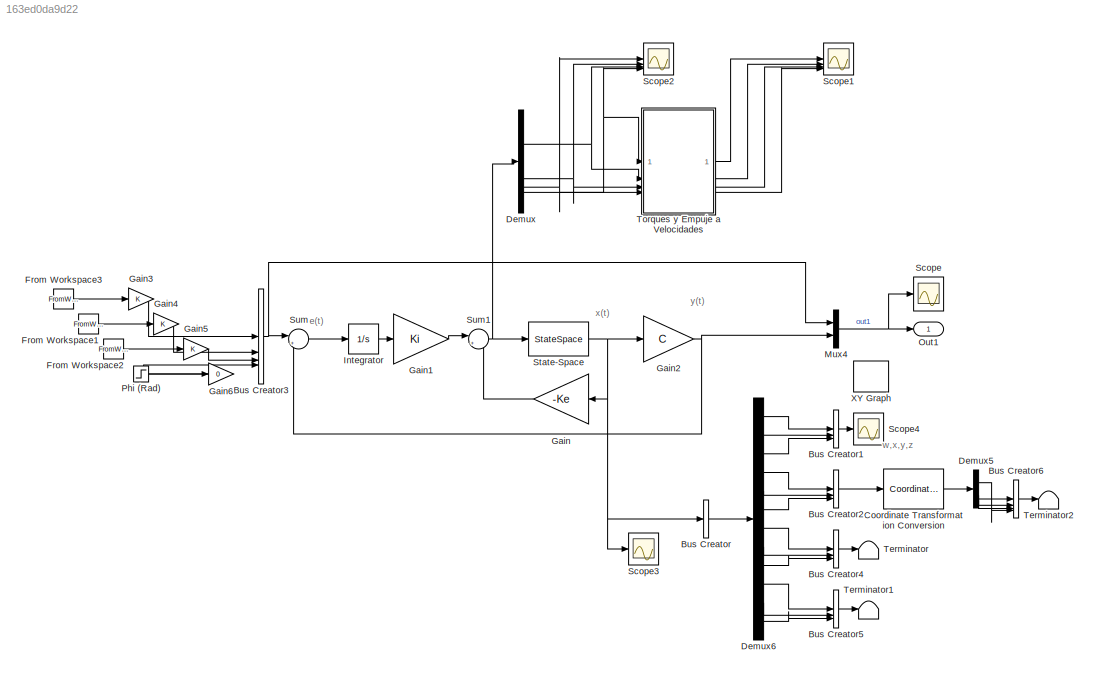
MODEL slx_163ed0da9d22
KIND model
CONFIG AbsTol = auto
CONFIG EnableMultiTasking = off
CONFIG FixedStep = T
CONFIG MaxStep = auto
CONFIG MinStep = auto
CONFIG RelTol = 1e-3
CONFIG SampleTimeConstraint = Unconstrained
CONFIG SolverName = FixedStepAuto
CONFIG StartTime = 0.0
CONFIG StopTime = t_final
BLOCK [BusCreator] Bus Creator
  DisplayOption = bar
  InheritFromInputs = on
  Inputs = 1
BLOCK [BusCreator] Bus Creator1
  DisplayOption = bar
  InheritFromInputs = on
  Inputs = 3
BLOCK [BusCreator] Bus Creator2
  DisplayOption = bar
  InheritFromInputs = on
  Inputs = 3
BLOCK [BusCreator] Bus Creator3
  DisplayOption = bar
  InheritFromInputs = on
  Inputs = 4
BLOCK [BusCreator] Bus Creator4
  DisplayOption = bar
  InheritFromInputs = on
  Inputs = 3
BLOCK [BusCreator] Bus Creator5
  DisplayOption = bar
  InheritFromInputs = on
  Inputs = 3
BLOCK [BusCreator] Bus Creator6
  DisplayOption = bar
  InheritFromInputs = on
  Inputs = 4
BLOCK [Reference] Coordinate Transformation Conversion  REF=robotcorelib/Coordinate Transformation Conversion
  SourceBlock = robotcorelib/Coordinate Transformation Conversion
  SourceType = robotics.slcore.internal.block.CoordinateTransformationConversion
BLOCK [Demux] Demux
BLOCK [Demux] Demux5
BLOCK [Demux] Demux6
  Outputs = 12
BLOCK [FromWorkspace] From Workspace1
  OutDataTypeStr = double
  SampleTime = -1
  VariableName = y
BLOCK [FromWorkspace] From Workspace2
  OutDataTypeStr = double
  SampleTime = -1
  VariableName = z
BLOCK [FromWorkspace] From Workspace3
  OutDataTypeStr = double
  SampleTime = -1
  VariableName = x
BLOCK [Gain] Gain
  Gain = -Ke
  Multiplication = Matrix(K*u) (u vector)
BLOCK [Gain] Gain1
  Gain = Ki
  Multiplication = Matrix(K*u) (u vector)
BLOCK [Gain] Gain2
  Gain = C
  Multiplication = Matrix(K*u) (u vector)
BLOCK [Gain] Gain3
BLOCK [Gain] Gain4
BLOCK [Gain] Gain5
BLOCK [Gain] Gain6
  Gain = 0
BLOCK [Integrator] Integrator
BLOCK [Mux] Mux4
  DisplayOption = bar
  Inputs = 2
BLOCK [Outport] Out1
BLOCK [Step] Phi (Rad)
  SampleTime = T
  Time = 3
BLOCK [Scope] Scope
  Floating = off
  NumInputPorts = 1
  ScopeSpecificationString = Simulink.scopes.TimeScopeBlockCfg('CurrentConfiguration', extmgr.ConfigurationSet(extmgr.Configuration('Core','General UI',true,'FigureColor',[1 1 1]),extmgr.Configuration('Core','Source UI',true),extmgr.Configuration('Sources','WiredSimulink',true),extmgr.Configuration('Visuals','Time Domain',true,'SerializedDisplays',{struct('MinYLimReal','-3.75','MaxYLimReal','3.75','YLabelReal','','MinYLimMag'...<+2750ch>
BLOCK [Scope] Scope1
  Floating = off
  NumInputPorts = 4
  ScopeSpecificationString = Simulink.scopes.TimeScopeBlockCfg('CurrentConfiguration', extmgr.ConfigurationSet(extmgr.Configuration('Core','General UI',true),extmgr.Configuration('Core','Source UI',true),extmgr.Configuration('Sources','WiredSimulink',true,'DataLoggingVariableName','ScopeData1'),extmgr.Configuration('Visuals','Time Domain',true,'SerializedDisplays',{struct('MinYLimReal','15.06231','MaxYLimReal','114.43919','YL...<+1909ch>
BLOCK [Scope] Scope2
  Floating = off
  NumInputPorts = 4
  ScopeSpecificationString = Simulink.scopes.TimeScopeBlockCfg('CurrentConfiguration', extmgr.ConfigurationSet(extmgr.Configuration('Core','General UI',true),extmgr.Configuration('Core','Source UI',true),extmgr.Configuration('Sources','WiredSimulink',true,'DataLoggingVariableName','ScopeData2'),extmgr.Configuration('Visuals','Time Domain',true,'SerializedDisplays',{struct('MinYLimReal','-20.70474','MaxYLimReal','9.36899','YLa...<+1542ch>
BLOCK [Scope] Scope3
  Floating = off
  NumInputPorts = 1
  ScopeSpecificationString = Simulink.scopes.TimeScopeBlockCfg('CurrentConfiguration', extmgr.ConfigurationSet(extmgr.Configuration('Core','General UI',true),extmgr.Configuration('Core','Source UI',true),extmgr.Configuration('Sources','WiredSimulink',true,'DataLoggingVariableName','ScopeData1'),extmgr.Configuration('Visuals','Time Domain',true,'SerializedDisplays',{struct('MinYLimReal','-0.53341','MaxYLimReal','4.80071','YLab...<+1876ch>
BLOCK [Scope] Scope4
  Floating = off
  NumInputPorts = 1
  ScopeSpecificationString = Simulink.scopes.TimeScopeBlockCfg('CurrentConfiguration', extmgr.ConfigurationSet(extmgr.Configuration('Core','General UI',true),extmgr.Configuration('Core','Source UI',true),extmgr.Configuration('Sources','WiredSimulink',true,'DataLoggingVariableName','ScopeData1'),extmgr.Configuration('Visuals','Time Domain',true,'SerializedDisplays',{struct('MinYLimReal','-3.74904','MaxYLimReal','3.74904','YLab...<+1420ch>
BLOCK [StateSpace] State-Space
  A = A
  B = B
  C = eye(12)
  D = D
  InitialCondition = 0
  ParameterTunability = Unconstrained
BLOCK [Sum] Sum
  Inputs = |+-
BLOCK [Sum] Sum1
  Inputs = |+-
BLOCK [Terminator] Terminator
BLOCK [Terminator] Terminator1
BLOCK [Terminator] Terminator2
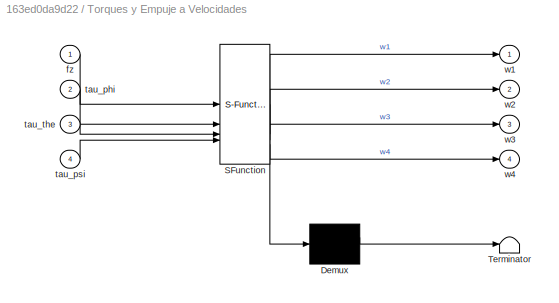
BLOCK [SubSystem] Torques y Empuje a Velocidades
  ErrorFcn = Stateflow.Translate.translate
  PermitHierarchicalResolution = ExplicitOnly
  SFBlockType = MATLAB Function
  TreatAsAtomicUnit = on
BLOCK [Demux] Torques y Empuje a Velocidades/ Demux 
  Outputs = 1
BLOCK [S-Function] Torques y Empuje a Velocidades/ SFunction 
  EnableBusSupport = on
  FunctionName = sf_sfun
  PortCounts = [4 5]
  SFcnIsStateOwnerBlock = off
  SFunctionDeploymentMode = off
  Tag = Stateflow S-Function 1
BLOCK [Terminator] Torques y Empuje a Velocidades/ Terminator 
BLOCK [Inport] Torques y Empuje a Velocidades/fz
BLOCK [Inport] Torques y Empuje a Velocidades/tau_phi
  Port = 2
BLOCK [Inport] Torques y Empuje a Velocidades/tau_psi
  Port = 4
BLOCK [Inport] Torques y Empuje a Velocidades/tau_the
  Port = 3
BLOCK [Outport] Torques y Empuje a Velocidades/w1
BLOCK [Outport] Torques y Empuje a Velocidades/w2
  Port = 2
BLOCK [Outport] Torques y Empuje a Velocidades/w3
  Port = 3
BLOCK [Outport] Torques y Empuje a Velocidades/w4
  Port = 4
BLOCK [Record] XY Graph
  CompatibilityTag = XY
  FileSettingsInternal = {"entries":[{"content":{"excelSettings":{"content":{},"type":"Streamout.ExcelSettings"}},"type":"Streamout.FileSettingStorage","uuid":""}],"packageUris":["http:\/\/schema.mathworks.com\/mf0\/streamout_blocks\/R2020a"],"version":"1.0"}
  Layout = [1 1]
  SignalsInternal = {"entries":[{"content":{"signals":[{"content":{"blockPath":[],"dimensions":[1],"domain":"","lineColor":"#a2142f","plots":[1],"port":1,"sid":[""],"signalID":5879,"signalName":"Demux6:1"},"type":"RecordBlkView.Signal","uuid":""},{"content":{"blockPath":[],"dimensions":[1],"domain":"","lineColor":"#139fff","plots":[1],"port":2,"sid":[""],"signalID":5883,"signalName":"Demux6:2"},"type":"RecordBlkView....<+164ch>
  VisualizationBindings = {"xyplotplugin":{"info":[{"series":[{"bindingParametersList":[{"parameter":"X-Axis","signalID":5879,"signalName":"Demux6:1"},{"parameter":"Y-Axis","signalID":5883,"signalName":"Demux6:2"}],"seriesID":8683}],"subplotID":1}]}}
ANNOTATION (root): e(t)
ANNOTATION (root): w,x,y,z
ANNOTATION (root): x(t)
ANNOTATION (root): y(t)
LINE Bus Creator1:1 -> Scope4:1
LINE Bus Creator2:1 -> Coordinate Transformation Conversion:1
NET Bus Creator3:1 -> Mux4:1, Sum:1
LINE Bus Creator4:1 -> Terminator:1
LINE Bus Creator5:1 -> Terminator1:1
LINE Bus Creator6:1 -> Terminator2:1
LINE Bus Creator:1 -> Demux6:1
LINE Coordinate Transformation Conversion:1 -> Demux5:1
LINE Demux5:1 -> Bus Creator6:4
LINE Demux5:2 -> Bus Creator6:1
LINE Demux5:3 -> Bus Creator6:2
LINE Demux5:4 -> Bus Creator6:3
LINE Demux6:1 -> Bus Creator1:1
LINE Demux6:10 -> Bus Creator5:1
LINE Demux6:11 -> Bus Creator5:2
LINE Demux6:12 -> Bus Creator5:3
LINE Demux6:2 -> Bus Creator1:2
LINE Demux6:3 -> Bus Creator1:3
LINE Demux6:4 -> Bus Creator2:1
LINE Demux6:5 -> Bus Creator2:2
LINE Demux6:6 -> Bus Creator2:3
LINE Demux6:7 -> Bus Creator4:1
LINE Demux6:8 -> Bus Creator4:2
LINE Demux6:9 -> Bus Creator4:3
NET Demux:1 -> Scope2:3, Torques y Empuje a Velocidades:2
NET Demux:2 -> Scope2:2, Torques y Empuje a Velocidades:3
NET Demux:3 -> Scope2:1, Torques y Empuje a Velocidades:4
NET Demux:4 -> Scope2:4, Torques y Empuje a Velocidades:1
LINE From Workspace1:1 -> Gain4:1
LINE From Workspace2:1 -> Gain5:1
LINE From Workspace3:1 -> Gain3:1
LINE Gain1:1 -> Sum1:1
NET Gain2:1 -> Mux4:2, Sum:2
LINE Gain3:1 -> Bus Creator3:1
LINE Gain4:1 -> Bus Creator3:2
LINE Gain5:1 -> Bus Creator3:3
LINE Gain6:1 -> Bus Creator3:4
LINE Gain:1 -> Sum1:2
LINE Integrator:1 -> Gain1:1
NET Mux4:1 -> Out1:1, Scope:1
LINE Phi (Rad):1 -> Gain6:1
NET State-Space:1 -> Bus Creator:1, Gain2:1, Gain:1, Scope3:1
NET Sum1:1 -> Demux:1, State-Space:1
LINE Sum:1 -> Integrator:1
LINE Torques y Empuje a Velocidades:1 -> Scope1:1
LINE Torques y Empuje a Velocidades:2 -> Scope1:2
LINE Torques y Empuje a Velocidades:3 -> Scope1:3
LINE Torques y Empuje a Velocidades:4 -> Scope1:4
note: NET lines group one-source signal fan-out (src -> all destinations, sorted); 1:1 wires keep LINE
CHART Torques y Empuje a Velocidades states=1 transitions=1
  STATE_LABEL 'eML_blk_kernel()'
  STATE_LABEL 'SCRIPT:\nfunction [w1,w2,w3,w4] = H(fz,tau_phi,tau_the,tau_psi)\n%         Salidas          Entradas\n\n% Constantes \nl = 0.2;    % m\nkf = 0.007; % Nm/A\nkm = 0.8;   % V/kRPM\n\n% Matriz H\nH = [kf     kf      kf      kf;\n     0      l*kf    0       -l*kf;\n     -l*kf  0       l*kf    0;  \n     km     -km     km      -km];\n \n% Inversa de H\nH_inversa = inv(H);\n\n% Vector de entrada\nTorques = [fz;\n           ...<+459ch>'
CHART  states=0 transitions=0
